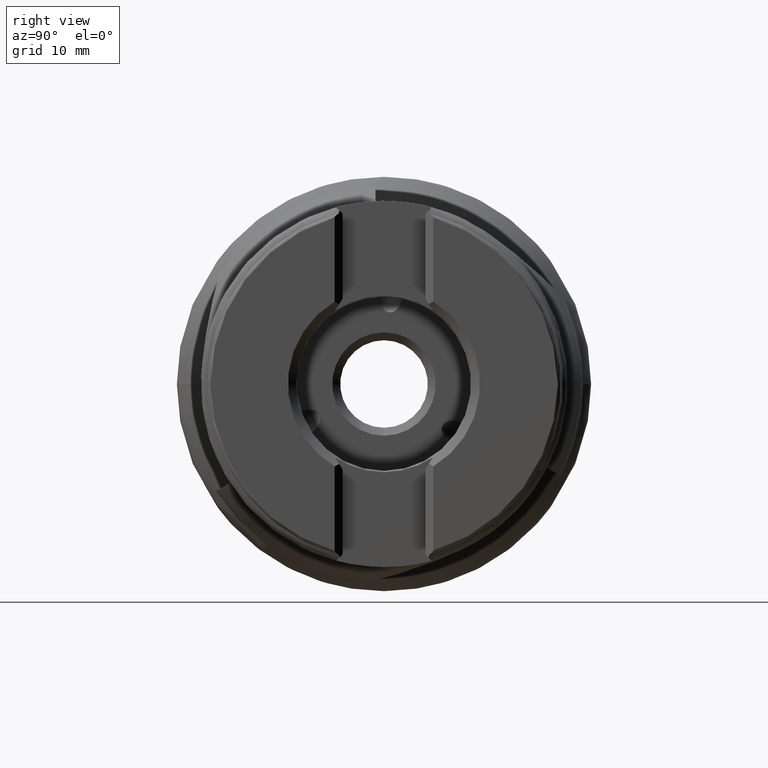
[diagram: clean part render]
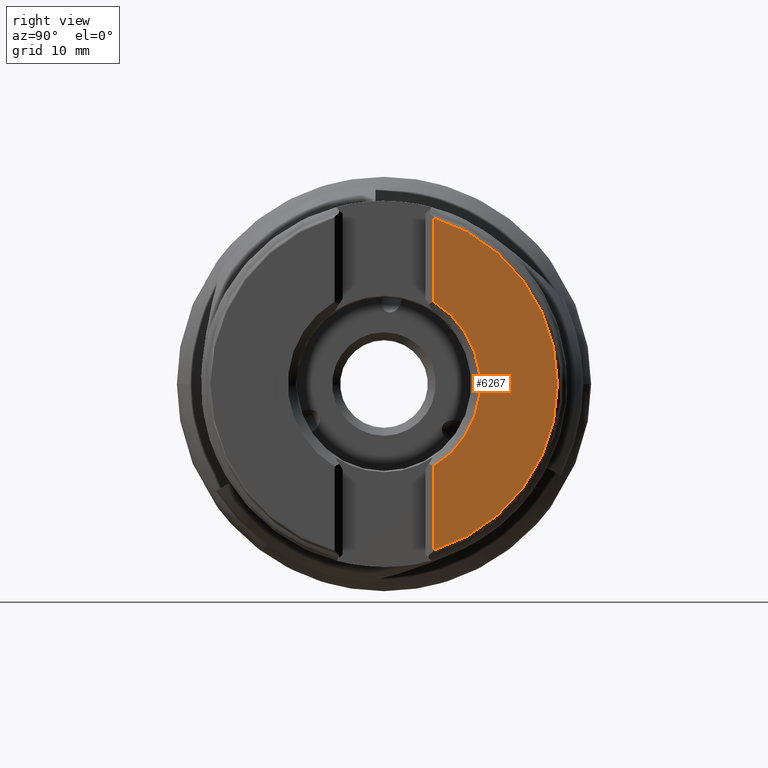
[diagram: same view with one face highlighted and labeled with its STEP entity id]
A machine part, right view. The second image highlights one B-rep face of the part: STEP entity #6267.
In plain terms, the highlighted planar face has unit normal (-1, 0, -0).
Its self-contained STEP definition (entity closure, byte-faithful):
#187 = EDGE_LOOP ( 'NONE', ( #6710, #6711, #6712, #6713 ) ) ;
#1015 = CARTESIAN_POINT ( 'NONE',  ( 53.72299999999999900, 6.200000000000001100, 10.36173851243120400 ) ) ;
#1028 = CARTESIAN_POINT ( 'NONE',  ( 53.72299999999999900, 6.200000000000002000, -20.88932981213135800 ) ) ;
#1088 = CARTESIAN_POINT ( 'NONE',  ( 53.72299999999999900, 6.200000000000001100, -10.36173851243120400 ) ) ;
#1206 = CARTESIAN_POINT ( 'NONE',  ( 53.72299999999999900, 6.200000000000002000, 20.88932981213135800 ) ) ;
#1425 = CARTESIAN_POINT ( 'NONE',  ( 53.72299999999999900, 6.200000000000003700, -29.00000000000000000 ) ) ;
#1426 = DIRECTION ( 'NONE',  ( -0.0000000000000000000, -0.0000000000000000000, 1.000000000000000000 ) ) ;
#1427 = CARTESIAN_POINT ( 'NONE',  ( 53.72299999999999900, 0.0000000000000000000, 0.0000000000000000000 ) ) ;
#1428 = DIRECTION ( 'NONE',  ( -1.000000000000000000, -0.0000000000000000000, -0.0000000000000000000 ) ) ;
#1429 = DIRECTION ( 'NONE',  ( 0.0000000000000000000, 0.0000000000000000000, 1.000000000000000000 ) ) ;
#1477 = CARTESIAN_POINT ( 'NONE',  ( 53.72299999999999900, 6.200000000000003700, -29.00000000000000000 ) ) ;
#1478 = DIRECTION ( 'NONE',  ( -0.0000000000000000000, -0.0000000000000000000, 1.000000000000000000 ) ) ;
#1499 = CARTESIAN_POINT ( 'NONE',  ( 53.72299999999999900, 0.0000000000000000000, 0.0000000000000000000 ) ) ;
#1500 = DIRECTION ( 'NONE',  ( -1.000000000000000000, -0.0000000000000000000, -0.0000000000000000000 ) ) ;
#1501 = DIRECTION ( 'NONE',  ( 0.0000000000000000000, 0.0000000000000000000, 1.000000000000000000 ) ) ;
#1986 = EDGE_CURVE ( 'NONE', #3965, #3786, #3328, .T. ) ;
#1991 = EDGE_CURVE ( 'NONE', #3786, #3847, #3332, .T. ) ;
#1999 = EDGE_CURVE ( 'NONE', #3772, #3965, #3334, .T. ) ;
#2004 = EDGE_CURVE ( 'NONE', #3772, #3847, #3344, .T. ) ;
#3328 = CIRCLE ( 'NONE', #6432, 21.78999999999999900 ) ;
#3332 = LINE ( 'NONE', #1425, #3333 ) ;
#3333 = VECTOR ( 'NONE', #1426, 1000.000000000000000 ) ;
#3334 = LINE ( 'NONE', #1477, #3339 ) ;
#3339 = VECTOR ( 'NONE', #1478, 1000.000000000000000 ) ;
#3344 = CIRCLE ( 'NONE', #6441, 12.07500000000000600 ) ;
#3652 = FACE_OUTER_BOUND ( 'NONE', #187, .T. ) ;
#3772 = VERTEX_POINT ( 'NONE', #1015 ) ;
#3786 = VERTEX_POINT ( 'NONE', #1028 ) ;
#3847 = VERTEX_POINT ( 'NONE', #1088 ) ;
#3965 = VERTEX_POINT ( 'NONE', #1206 ) ;
#4627 = CARTESIAN_POINT ( 'NONE',  ( 53.72299999999999900, 21.78999999999999900, 0.0000000000000000000 ) ) ;
#4630 = PLANE ( 'NONE',  #6583 ) ;
#4632 = DIRECTION ( 'NONE',  ( -1.000000000000000000, 0.0000000000000000000, -0.0000000000000000000 ) ) ;
#4633 = DIRECTION ( 'NONE',  ( -0.0000000000000000000, 0.0000000000000000000, 1.000000000000000000 ) ) ;
#6267 = ADVANCED_FACE ( 'NONE', ( #3652 ), #4630, .F. ) ;
#6432 = AXIS2_PLACEMENT_3D ( 'NONE', #1427, #1428, #1429 ) ;
#6441 = AXIS2_PLACEMENT_3D ( 'NONE', #1499, #1500, #1501 ) ;
#6583 = AXIS2_PLACEMENT_3D ( 'NONE', #4627, #4632, #4633 ) ;
#6710 = ORIENTED_EDGE ( 'NONE', *, *, #1986, .F. ) ;
#6711 = ORIENTED_EDGE ( 'NONE', *, *, #1999, .F. ) ;
#6712 = ORIENTED_EDGE ( 'NONE', *, *, #2004, .T. ) ;
#6713 = ORIENTED_EDGE ( 'NONE', *, *, #1991, .F. ) ;